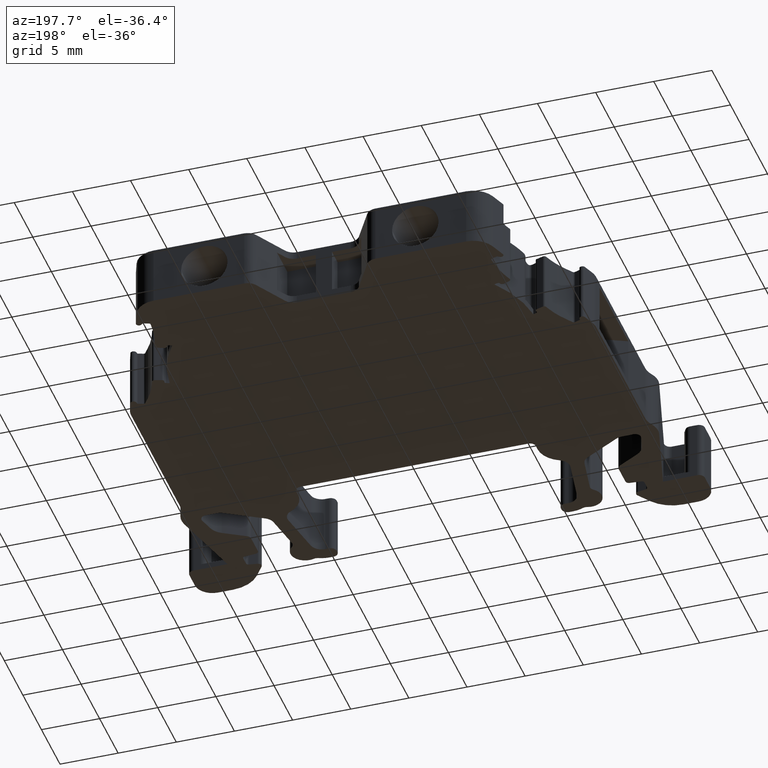
[diagram: clean part render]
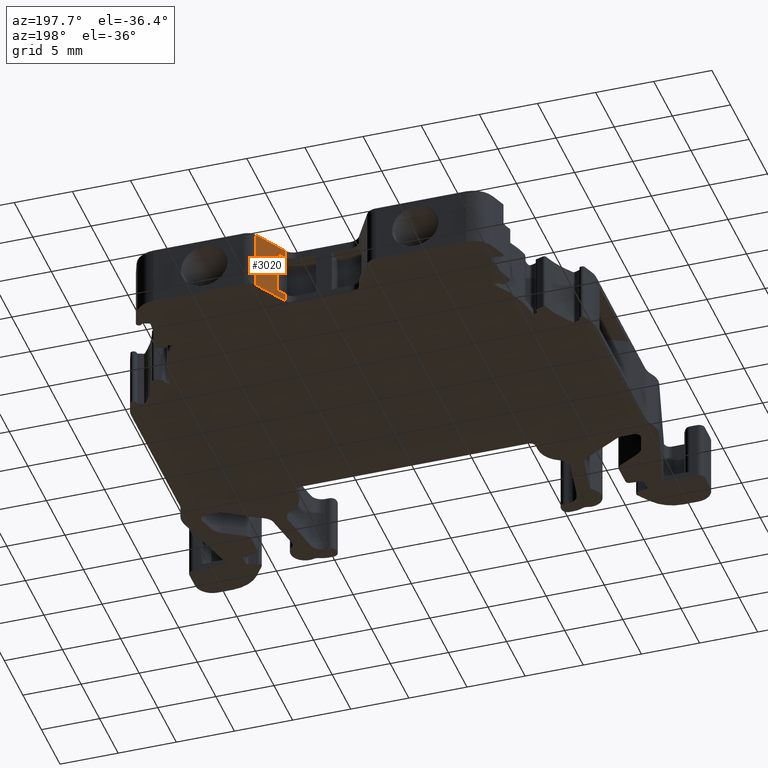
[diagram: same view with one face highlighted and labeled with its STEP entity id]
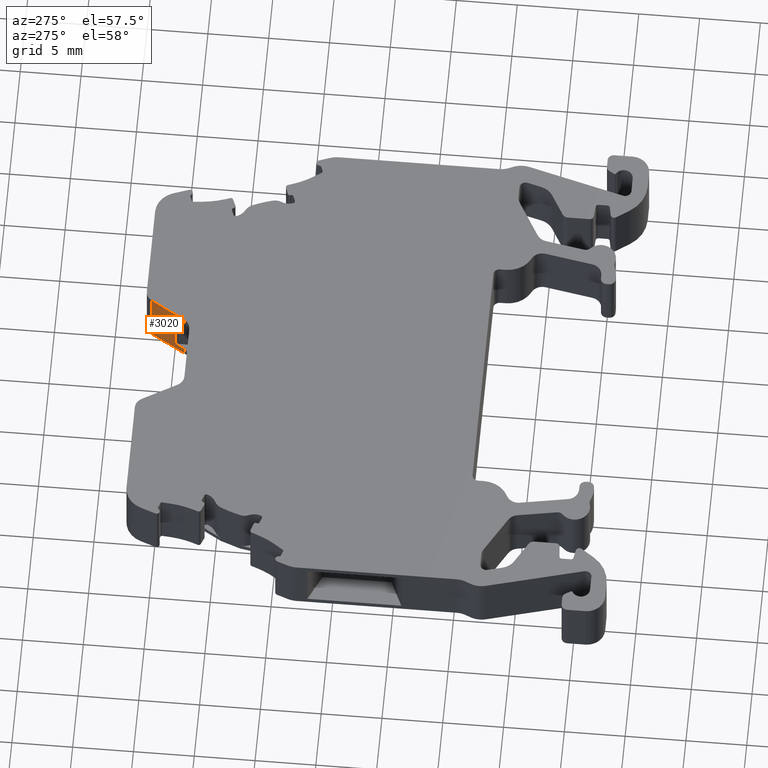
[diagram: same view with one face highlighted and labeled with its STEP entity id]
A machine part, auxiliary view. The second image highlights one B-rep face of the part: STEP entity #3020.
A second angle (auxiliary view) of the same face is appended — the face is thin or edge-on in the first view.
In plain terms, the highlighted planar face has unit normal (0.866, -0.5, 0).
Its self-contained STEP definition (entity closure, byte-faithful):
#258 = ORIENTED_EDGE ( 'NONE', *, *, #3518, .T. ) ;
#279 = ORIENTED_EDGE ( 'NONE', *, *, #3084, .F. ) ;
#299 = ORIENTED_EDGE ( 'NONE', *, *, #3080, .T. ) ;
#371 = ORIENTED_EDGE ( 'NONE', *, *, #3094, .T. ) ;
#372 = ORIENTED_EDGE ( 'NONE', *, *, #3760, .F. ) ;
#374 = ORIENTED_EDGE ( 'NONE', *, *, #3708, .F. ) ;
#375 = ORIENTED_EDGE ( 'NONE', *, *, #3530, .T. ) ;
#380 = ORIENTED_EDGE ( 'NONE', *, *, #3755, .F. ) ;
#806 = EDGE_LOOP ( 'NONE', ( #279, #380, #299, #371, #375, #372, #258, #374 ) ) ;
#1084 = VERTEX_POINT ( 'NONE', #5864 ) ;
#1137 = VERTEX_POINT ( 'NONE', #5931 ) ;
#1139 = VERTEX_POINT ( 'NONE', #5972 ) ;
#1140 = VERTEX_POINT ( 'NONE', #5948 ) ;
#1229 = VERTEX_POINT ( 'NONE', #5982 ) ;
#1232 = VERTEX_POINT ( 'NONE', #6017 ) ;
#1274 = VERTEX_POINT ( 'NONE', #6064 ) ;
#1331 = VERTEX_POINT ( 'NONE', #6074 ) ;
#1404 = DIRECTION ( 'NONE',  ( 0.0000000000000000000, -0.0000000000000000000, -1.000000000000000000 ) ) ;
#1410 = CARTESIAN_POINT ( 'NONE',  ( 1463.798615540332100, 954.9607552055396100, -48.79999999999999700 ) ) ;
#3020 = ADVANCED_FACE ( 'NONE', ( #7368 ), #7420, .F. ) ;
#3080 = EDGE_CURVE ( 'NONE', #1331, #1274, #7728, .T. ) ;
#3084 = EDGE_CURVE ( 'NONE', #1229, #1232, #7797, .T. ) ;
#3094 = EDGE_CURVE ( 'NONE', #1274, #1084, #7943, .T. ) ;
#3518 = EDGE_CURVE ( 'NONE', #1139, #1140, #3912, .T. ) ;
#3530 = EDGE_CURVE ( 'NONE', #1084, #1137, #3992, .T. ) ;
#3708 = EDGE_CURVE ( 'NONE', #1232, #1140, #4514, .T. ) ;
#3755 = EDGE_CURVE ( 'NONE', #1331, #1229, #4655, .T. ) ;
#3760 = EDGE_CURVE ( 'NONE', #1139, #1137, #4309, .T. ) ;
#3912 = LINE ( 'NONE', #3948, #8895 ) ;
#3924 = DIRECTION ( 'NONE',  ( -0.5000000000004719600, -0.8660254037841661500, 0.0000000000000000000 ) ) ;
#3948 = CARTESIAN_POINT ( 'NONE',  ( 1463.798615540332100, 954.9607552055395000, -43.60000000000000100 ) ) ;
#3955 = CARTESIAN_POINT ( 'NONE',  ( 1463.350548044489900, 954.1846795375215600, -47.39999999999999900 ) ) ;
#3970 = DIRECTION ( 'NONE',  ( 0.5000000000007097700, 0.8660254037840288100, 0.0000000000000000000 ) ) ;
#3992 = LINE ( 'NONE', #3955, #8910 ) ;
#4309 = LINE ( 'NONE', #1410, #7496 ) ;
#4502 = CARTESIAN_POINT ( 'NONE',  ( 1463.350548044490600, 954.1846795375216700, -48.79999999999999700 ) ) ;
#4514 = LINE ( 'NONE', #4502, #7295 ) ;
#4527 = DIRECTION ( 'NONE',  ( 0.0000000000000000000, -0.0000000000000000000, -1.000000000000000000 ) ) ;
#4626 = CARTESIAN_POINT ( 'NONE',  ( 1464.960164099366200, 956.9726163252452100, -48.79999999999999700 ) ) ;
#4627 = DIRECTION ( 'NONE',  ( -0.0000000000000000000, 0.0000000000000000000, 1.000000000000000000 ) ) ;
#4655 = LINE ( 'NONE', #4626, #7492 ) ;
#5864 = CARTESIAN_POINT ( 'NONE',  ( 1463.350548044490100, 954.1846795375216700, -47.39999999999999900 ) ) ;
#5931 = CARTESIAN_POINT ( 'NONE',  ( 1463.798615514009000, 954.9607551599461900, -47.39999999999999900 ) ) ;
#5948 = CARTESIAN_POINT ( 'NONE',  ( 1463.350548044490300, 954.1846795375216700, -43.60000000000000100 ) ) ;
#5972 = CARTESIAN_POINT ( 'NONE',  ( 1463.798615538714300, 954.9607552027372300, -43.60000000000000100 ) ) ;
#5982 = CARTESIAN_POINT ( 'NONE',  ( 1464.960164099366200, 956.9726163252449900, -42.94999999999999600 ) ) ;
#6017 = CARTESIAN_POINT ( 'NONE',  ( 1463.350548044490300, 954.1846795375216700, -42.94999999999999600 ) ) ;
#6064 = CARTESIAN_POINT ( 'NONE',  ( 1463.350548044490600, 954.1846795375216700, -48.05000000000000400 ) ) ;
#6074 = CARTESIAN_POINT ( 'NONE',  ( 1464.960164099366200, 956.9726163252449900, -48.04999999999999700 ) ) ;
#7295 = VECTOR ( 'NONE', #4527, 1000.000000000000000 ) ;
#7368 = FACE_OUTER_BOUND ( 'NONE', #806, .T. ) ;
#7395 = DIRECTION ( 'NONE',  ( 0.8660254037845028800, -0.4999999999998888700, 0.0000000000000000000 ) ) ;
#7406 = DIRECTION ( 'NONE',  ( 0.4999999999998888700, 0.8660254037845028800, 0.0000000000000000000 ) ) ;
#7420 = PLANE ( 'NONE',  #8177 ) ;
#7434 = CARTESIAN_POINT ( 'NONE',  ( 1443.392671398974000, 919.6166231762840700, -48.79999999999999700 ) ) ;
#7492 = VECTOR ( 'NONE', #4627, 1000.000000000000000 ) ;
#7496 = VECTOR ( 'NONE', #1404, 1000.000000000000000 ) ;
#7728 = LINE ( 'NONE', #7808, #8248 ) ;
#7769 = CARTESIAN_POINT ( 'NONE',  ( 1463.350548044490300, 954.1846795375217900, -42.94999999999999600 ) ) ;
#7797 = LINE ( 'NONE', #7769, #8292 ) ;
#7808 = CARTESIAN_POINT ( 'NONE',  ( 1443.392671398974000, 919.6166231762840700, -48.05000000000000400 ) ) ;
#7813 = DIRECTION ( 'NONE',  ( -0.4999999999998888700, -0.8660254037845028800, -0.0000000000000000000 ) ) ;
#7855 = DIRECTION ( 'NONE',  ( -0.5000000000000662800, -0.8660254037844002900, -0.0000000000000000000 ) ) ;
#7858 = CARTESIAN_POINT ( 'NONE',  ( 1463.350548044490300, 954.1846795375217900, -42.20000000000000300 ) ) ;
#7916 = DIRECTION ( 'NONE',  ( -0.0000000000000000000, -0.0000000000000000000, 1.000000000000000000 ) ) ;
#7943 = LINE ( 'NONE', #7858, #8242 ) ;
#8177 = AXIS2_PLACEMENT_3D ( 'NONE', #7434, #7395, #7406 ) ;
#8242 = VECTOR ( 'NONE', #7916, 1000.000000000000000 ) ;
#8248 = VECTOR ( 'NONE', #7813, 1000.000000000000000 ) ;
#8292 = VECTOR ( 'NONE', #7855, 1000.000000000000200 ) ;
#8895 = VECTOR ( 'NONE', #3924, 1000.000000000000000 ) ;
#8910 = VECTOR ( 'NONE', #3970, 1000.000000000000100 ) ;